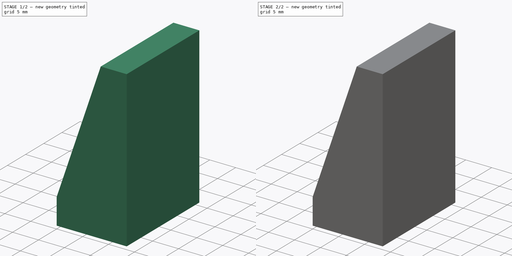
[diagram: build sequence overview — one tinted view per stage of 2, left to right]
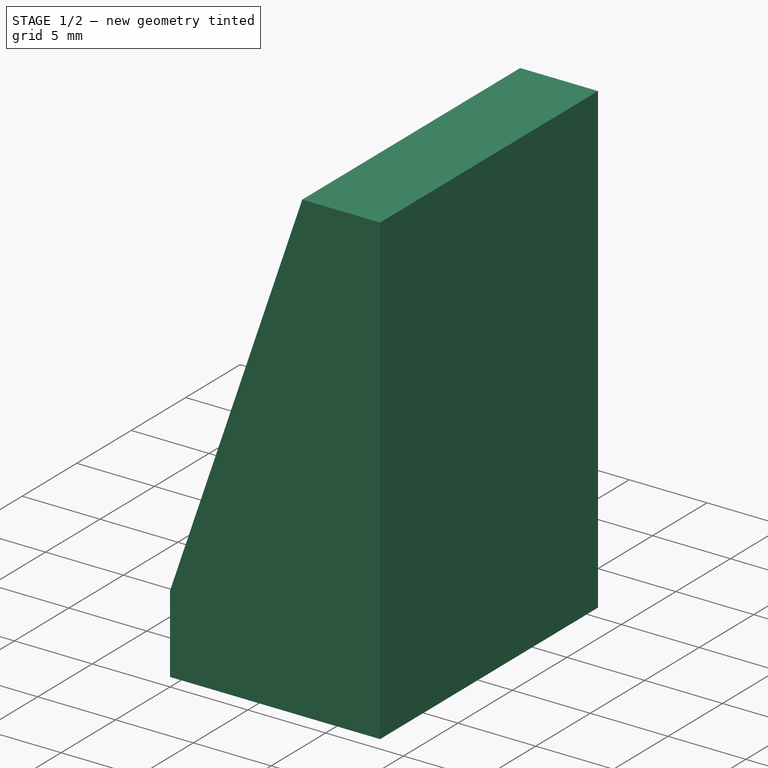
[diagram: stage 1 of 2 — iso view after this stage's code; geometry added in this stage tinted green]
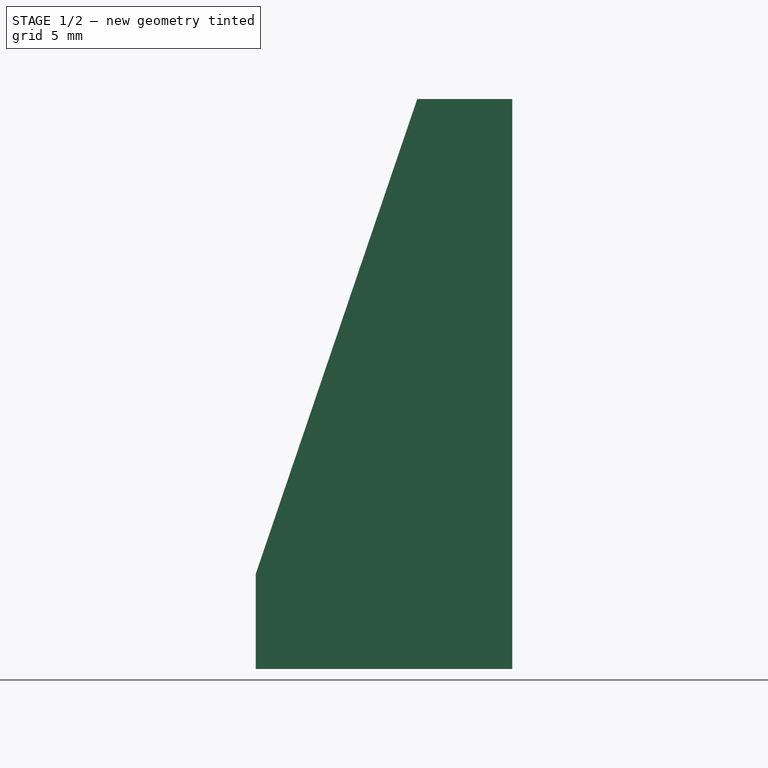
[diagram: stage 1 of 2 — front view after this stage's code; geometry added in this stage tinted green]
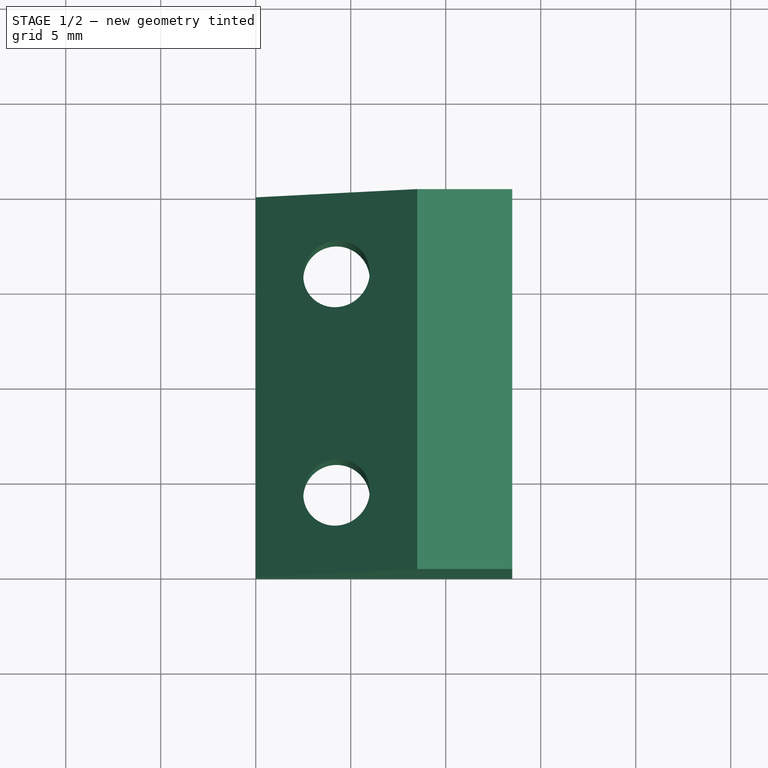
[diagram: stage 1 of 2 — top view after this stage's code; geometry added in this stage tinted green]
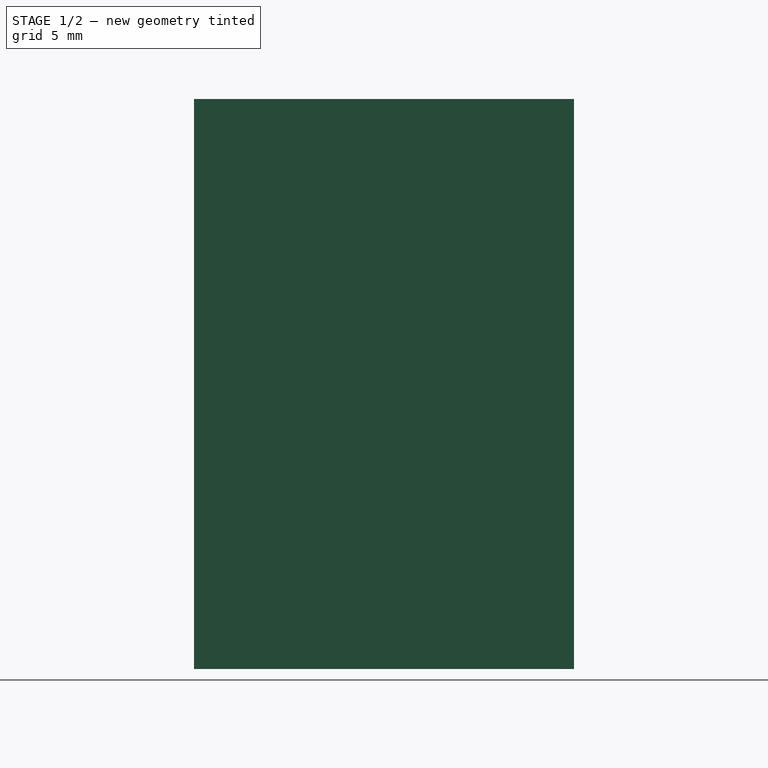
[diagram: stage 1 of 2 — right view after this stage's code; geometry added in this stage tinted green]
FCSTD DOCUMENT  (FreeCAD 0.19R)
Label: y-axis-stop
License: All rights reserved
LicenseURL: http://en.wikipedia.org/wiki/All_rights_reserved
objects: Sketcher::SketchObject×3, PartDesign::Pocket×2, PartDesign::Pad×1, PartDesign::Chamfer×1, PartDesign::Body×1
note: 12 computed .brp shape members not serialized (recipe doc carries the construction recipe); baked Part::Feature solids carry a one-line shape summary decoded from their .brp

FEATURE [Sketcher::SketchObject] Sketch
  FullyConstrained = true
  MapMode = 5
  Placement = pos=(0,0,0) rot=(1,0,0;1.5708rad)
  Support = -> [XZ_Plane]
  sketch-geometry (5):
    g0: LineSegment StartX=0 StartY=0 StartZ=0 EndX=13.5 EndY=0 EndZ=0
    g1: LineSegment StartX=13.5 StartY=0 StartZ=0 EndX=13.5 EndY=30 EndZ=0
    g2: LineSegment StartX=13.5 StartY=30 StartZ=0 EndX=8.5 EndY=30 EndZ=0
    g3: LineSegment StartX=8.5 StartY=30 StartZ=0 EndX=0 EndY=5 EndZ=0
    g4: LineSegment StartX=0 StartY=5 StartZ=0 EndX=0 EndY=0 EndZ=0
  constraints (14):
    c: Coincident(g0,g-1)
    c: PointOnObject(g0,g-1)
    c: Coincident(g1,g0)
    c: Vertical(g1)
    c: Coincident(g2,g1)
    c: Horizontal(g2)
    c: Coincident(g3,g2)
    c: PointOnObject(g3,g-2)
    c: Coincident(g4,g3)
    c: Coincident(g4,g0)
    c: DistanceX(g2,g2) = 5
    c: DistanceX(g0,g0) = 13.5
    c: DistanceY(g1,g1) = 30
    c: DistanceY(g4,g4) = 5
FEATURE [PartDesign::Pad] Pad
  Direction = (1,1,1)
  Length = 20
  Length2 = 100
  Placement = pos=(0,0,0) rot=(1,0,0;1.5708rad)
  Profile = -> Sketch
  Type = 0
FEATURE [Sketcher::SketchObject] Sketch001
  FullyConstrained = true
  MapMode = 5
  Placement = pos=(0,1.99e-14,30) rot=(0,0,1;3.14159rad)
  Support = -> [Pad]
  sketch-geometry (16):
    g0: LineSegment StartX=0 StartY=0 StartZ=0 EndX=-8.5 EndY=0 EndZ=0
    g1: LineSegment StartX=-8.5 StartY=20 StartZ=0 EndX=0 EndY=20 EndZ=0
    g2: LineSegment StartX=-8.5 StartY=11.5 StartZ=0 EndX=0 EndY=11.5 EndZ=0
    g3: LineSegment StartX=-8.5 StartY=8.5 StartZ=0 EndX=0 EndY=8.5 EndZ=0
    g4: LineSegment StartX=0 StartY=20 StartZ=0 EndX=0 EndY=11.5 EndZ=0
    g5: LineSegment StartX=0 StartY=11.5 StartZ=0 EndX=0 EndY=8.5 EndZ=0
    g6: LineSegment StartX=0 StartY=8.5 StartZ=0 EndX=0 EndY=0 EndZ=0
    g7: LineSegment StartX=-8.5 StartY=8.5 StartZ=0 EndX=-8.5 EndY=0 EndZ=0
    g8: LineSegment StartX=-8.5 StartY=11.5 StartZ=0 EndX=-8.5 EndY=8.5 EndZ=0
    g9: LineSegment StartX=-8.5 StartY=20 StartZ=0 EndX=-8.5 EndY=11.5 EndZ=0
    g10: LineSegment StartX=-8.5 StartY=11.5 StartZ=0 EndX=0 EndY=20 EndZ=0
    g11: LineSegment StartX=0 StartY=11.5 StartZ=0 EndX=-8.5 EndY=20 EndZ=0
    g12: LineSegment StartX=-8.5 StartY=0 StartZ=0 EndX=0 EndY=8.5 EndZ=0
    g13: LineSegment StartX=-8.5 StartY=8.5 StartZ=0 EndX=0 EndY=0 EndZ=0
    g14: Circle CenterX=-4.25 CenterY=15.75 CenterZ=0 NormalX=0 NormalY=0 NormalZ=1 AngleXU=0 Radius=1.75
    g15: Circle CenterX=-4.25 CenterY=4.25 CenterZ=0 NormalX=0 NormalY=0 NormalZ=1 AngleXU=0 Radius=1.75
  constraints (41):
    c: Horizontal(g0)
    c: Horizontal(g1)
    c: Coincident(g0,g-1)
    c: Horizontal(g2)
    c: Coincident(g4,g1)
    c: Coincident(g4,g2)
    c: Vertical(g4)
    c: Coincident(g5,g4)
    c: Coincident(g5,g3)
    c: Vertical(g5)
    c: Coincident(g6,g5)
    c: Coincident(g6,g0)
    c: Vertical(g6)
    c: Coincident(g7,g3)
    c: Coincident(g7,g0)
    c: Coincident(g8,g2)
    c: Coincident(g8,g7)
    c: Vertical(g8)
    c: Coincident(g9,g1)
    c: Coincident(g9,g8)
    c: DistanceY(g0,g1) = 20
    c: DistanceX(g1,g1) = 8.5
    c: Equal(g1,g9)
    c: Equal(g9,g2)
    c: Equal(g3,g7)
    c: Equal(g7,g6)
    c: Equal(g6,g0)
    c: Coincident(g10,g8)
    c: Coincident(g10,g1)
    c: Coincident(g11,g4)
    c: Coincident(g11,g1)
    c: Coincident(g12,g0)
    c: Coincident(g12,g5)
    c: Coincident(g13,g7)
    c: Coincident(g13,g0)
    c: PointOnObject(g14,g10)
    c: PointOnObject(g14,g11)
    c: PointOnObject(g15,g12)
    c: PointOnObject(g15,g13)
    c: Equal(g15,g14)
    c: Diameter(g15) = 3.5
FEATURE [PartDesign::Pocket] Pocket
  BaseFeature = -> Pad
  Length = 5
  Length2 = 100
  Placement = pos=(0,0,0) rot=(1,0,0;1.5708rad)
  Profile = -> Sketch001
  Type = 1
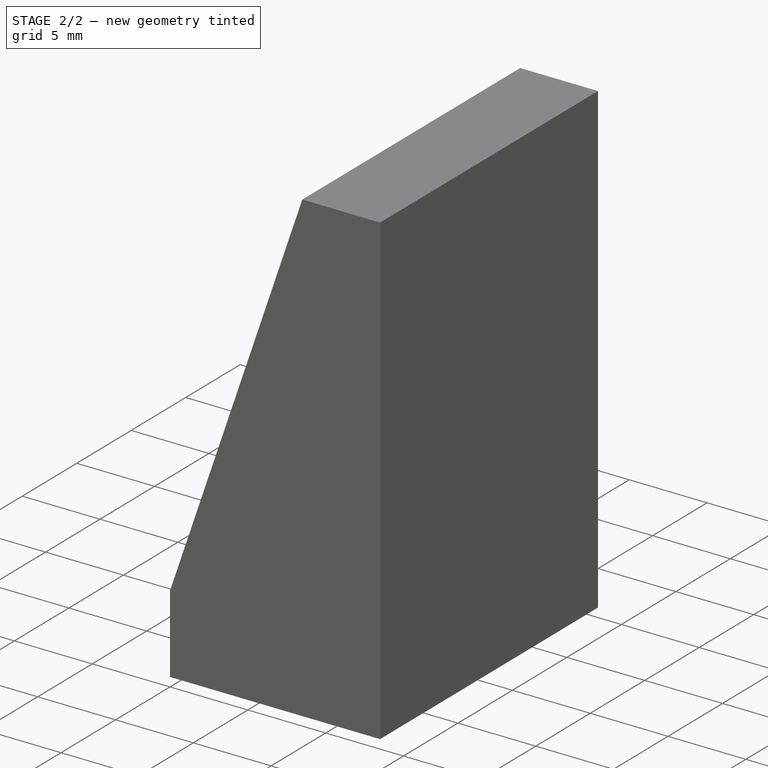
[diagram: stage 2 of 2 — iso view after this stage's code; geometry added in this stage tinted green]
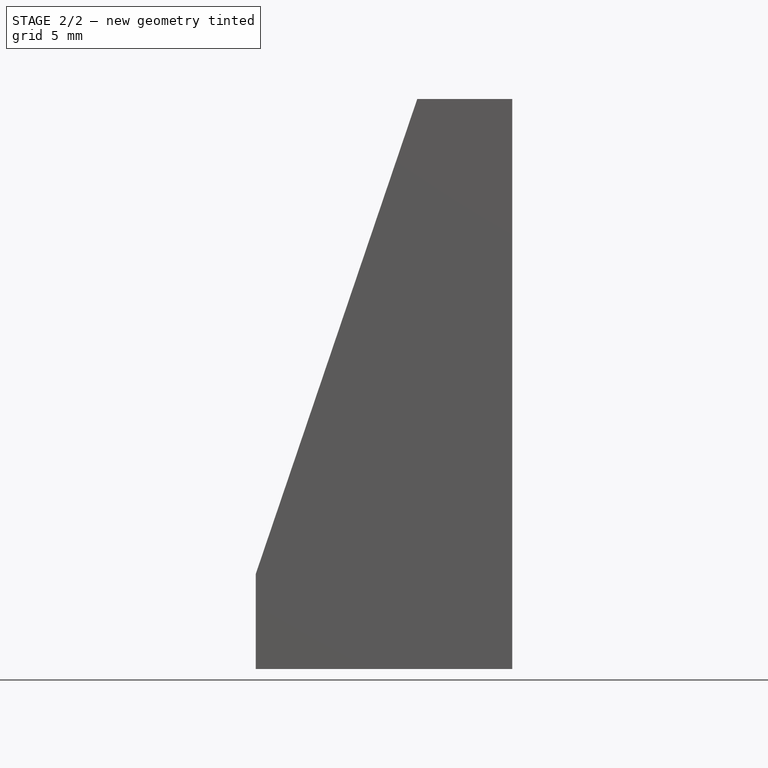
[diagram: stage 2 of 2 — front view after this stage's code; geometry added in this stage tinted green]
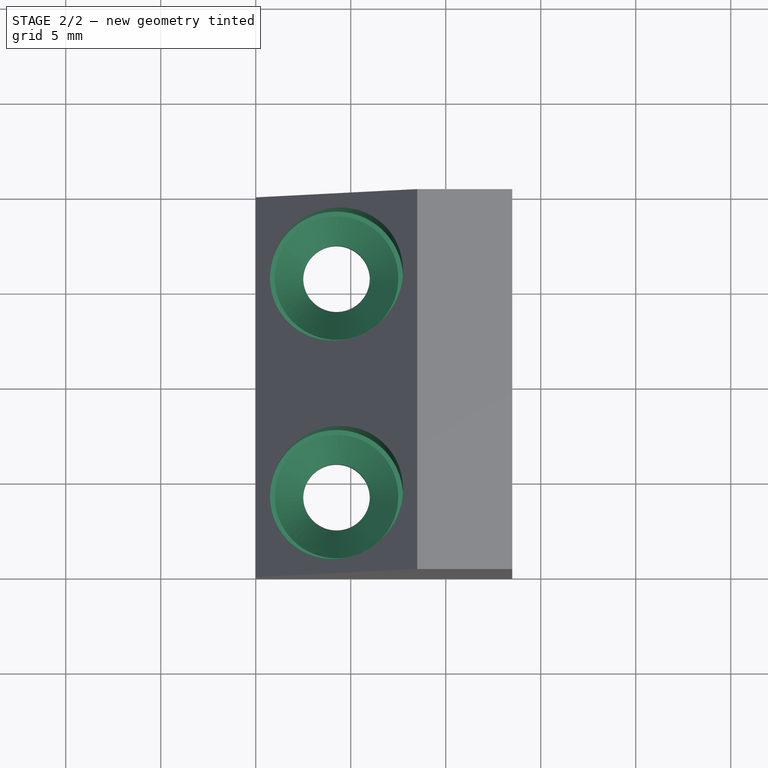
[diagram: stage 2 of 2 — top view after this stage's code; geometry added in this stage tinted green]
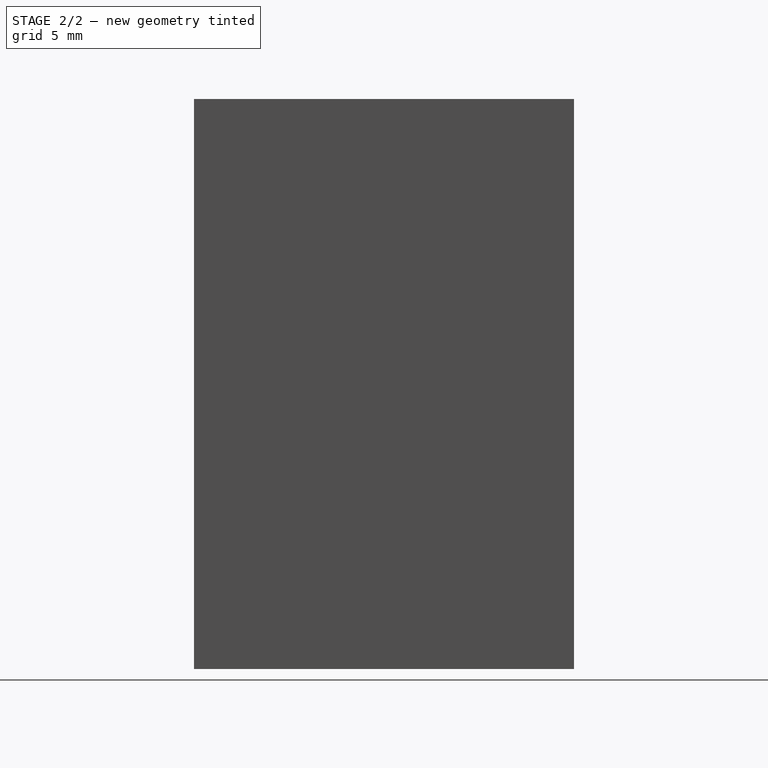
[diagram: stage 2 of 2 — right view after this stage's code; geometry added in this stage tinted green]
FEATURE [Sketcher::SketchObject] Sketch002
  FullyConstrained = true
  MapMode = 5
  Placement = pos=(0,1.99e-14,30) rot=(0,0,1;3.14159rad)
  Support = -> [Pocket]
  sketch-geometry (16):
    g0: LineSegment StartX=0 StartY=0 StartZ=0 EndX=0 EndY=8.5 EndZ=0
    g1: LineSegment StartX=0 StartY=8.5 StartZ=0 EndX=0 EndY=11.5 EndZ=0
    g2: LineSegment StartX=0 StartY=11.5 StartZ=0 EndX=0 EndY=20 EndZ=0
    g3: LineSegment StartX=0 StartY=20 StartZ=0 EndX=-8.5 EndY=20 EndZ=0
    g4: LineSegment StartX=-8.5 StartY=20 StartZ=0 EndX=-8.5 EndY=11.5 EndZ=0
    g5: LineSegment StartX=-8.5 StartY=11.5 StartZ=0 EndX=-8.5 EndY=8.5 EndZ=0
    g6: LineSegment StartX=-8.5 StartY=8.5 StartZ=0 EndX=-8.5 EndY=0 EndZ=0
    g7: LineSegment StartX=-8.5 StartY=0 StartZ=0 EndX=0 EndY=0 EndZ=0
    g8: LineSegment StartX=-8.5 StartY=11.5 StartZ=0 EndX=0 EndY=11.5 EndZ=0
    g9: LineSegment StartX=-8.5 StartY=8.5 StartZ=0 EndX=0 EndY=8.5 EndZ=0
    g10: LineSegment StartX=-8.5 StartY=11.5 StartZ=0 EndX=0 EndY=20 EndZ=0
    g11: LineSegment StartX=0 StartY=11.5 StartZ=0 EndX=-8.5 EndY=20 EndZ=0
    g12: LineSegment StartX=0 StartY=0 StartZ=0 EndX=-8.5 EndY=8.5 EndZ=0
    g13: LineSegment StartX=-8.5 StartY=0 StartZ=0 EndX=0 EndY=8.5 EndZ=0
    g14: Circle CenterX=-4.25 CenterY=15.75 CenterZ=0 NormalX=0 NormalY=0 NormalZ=1 AngleXU=0 Radius=3.5
    g15: Circle CenterX=-4.25 CenterY=4.25 CenterZ=0 NormalX=0 NormalY=0 NormalZ=1 AngleXU=0 Radius=3.5
  constraints (41):
    c: Coincident(g0,g-1)
    c: PointOnObject(g0,g-2)
    c: Coincident(g1,g0)
    c: PointOnObject(g1,g-2)
    c: Coincident(g2,g1)
    c: PointOnObject(g2,g-2)
    c: Coincident(g3,g2)
    c: Horizontal(g3)
    c: Coincident(g4,g3)
    c: Vertical(g4)
    c: Coincident(g5,g4)
    c: Vertical(g5)
    c: Coincident(g6,g5)
    c: PointOnObject(g6,g-1)
    c: Coincident(g7,g6)
    c: Coincident(g7,g-1)
    c: Vertical(g6)
    c: DistanceX(g3,g3) = 8.5
    c: DistanceY(g-1,g2) = 20
    c: Coincident(g8,g4)
    c: Coincident(g8,g1)
    c: Horizontal(g8)
    c: Coincident(g9,g5)
    c: Coincident(g9,g0)
    c: Horizontal(g9)
    c: Equal(g4,g8)
    c: Equal(g9,g6)
    c: Coincident(g10,g4)
    c: Coincident(g10,g2)
    c: Coincident(g11,g1)
    c: Coincident(g11,g3)
    c: Coincident(g12,g-1)
    c: Coincident(g12,g5)
    c: Coincident(g13,g6)
    c: Coincident(g13,g0)
    c: PointOnObject(g14,g10)
    c: PointOnObject(g14,g11)
    c: PointOnObject(g15,g13)
    c: PointOnObject(g15,g12)
    c: Equal(g14,g15)
    c: Diameter(g14) = 7
FEATURE [PartDesign::Pocket] Pocket001
  BaseFeature = -> Pocket
  Length = 25
  Length2 = 100
  Placement = pos=(0,0,0) rot=(1,0,0;1.5708rad)
  Profile = -> Sketch002
  Type = 0
FEATURE [PartDesign::Chamfer] Chamfer
  Angle = 45
  Base = -> Pocket001 [Edge19,Edge17]
  BaseFeature = -> Pocket001
  ChamferType = 1
  FlipDirection = false
  Placement = pos=(0,0,0) rot=(1,0,0;1.5708rad)
  Size = 2
  Size2 = 1.5
  SupportTransform = false
FEATURE [PartDesign::Body] Body
  Group = -> [Sketch,Pad,Sketch001,Pocket,Sketch002,Pocket001,Chamfer]
  Origin = -> Origin
  Tip = -> Chamfer
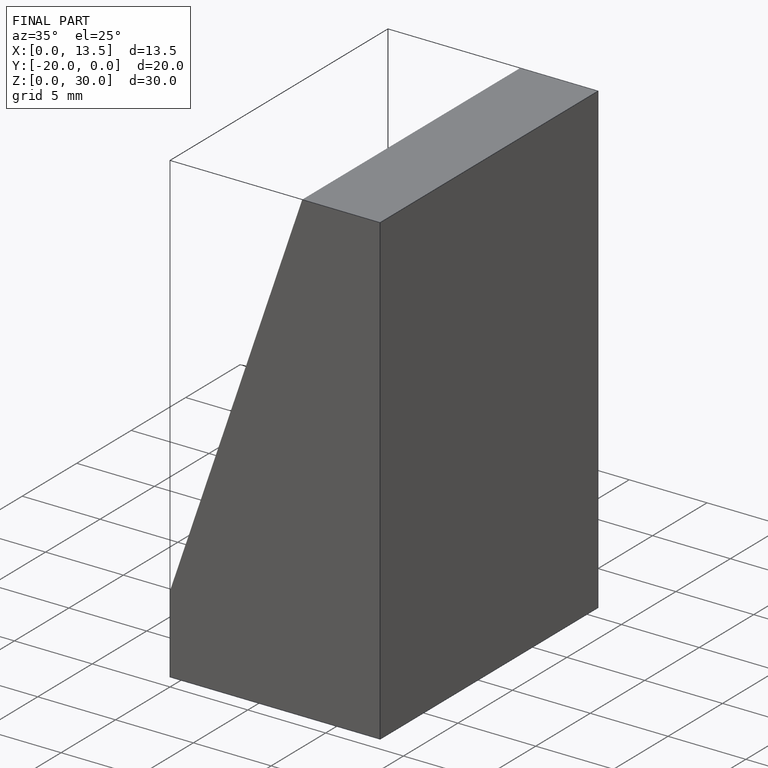
[diagram: finished part — iso view with bounding-box wireframe]
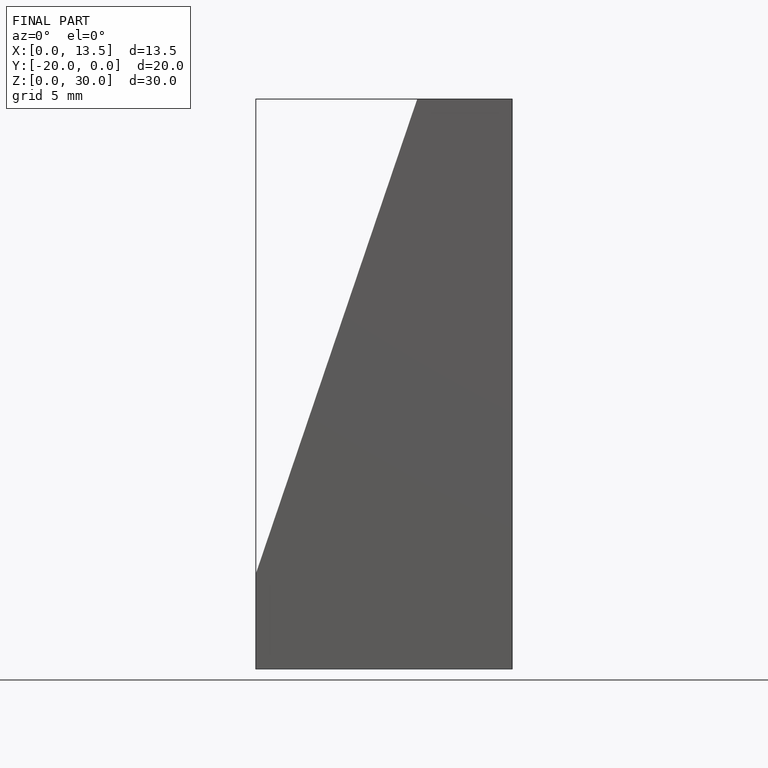
[diagram: finished part — front view with bounding-box wireframe]
